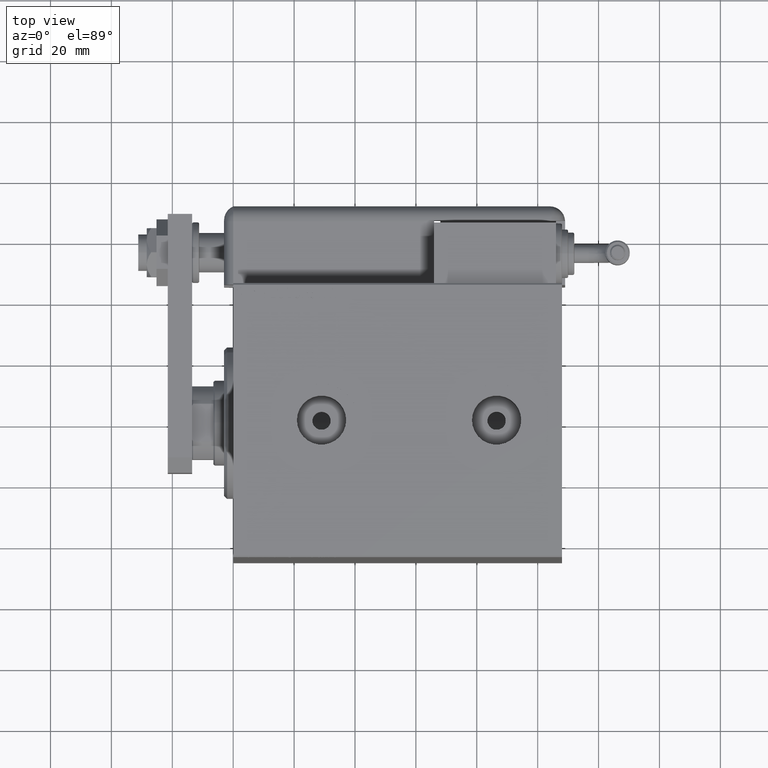
[diagram: clean part render]
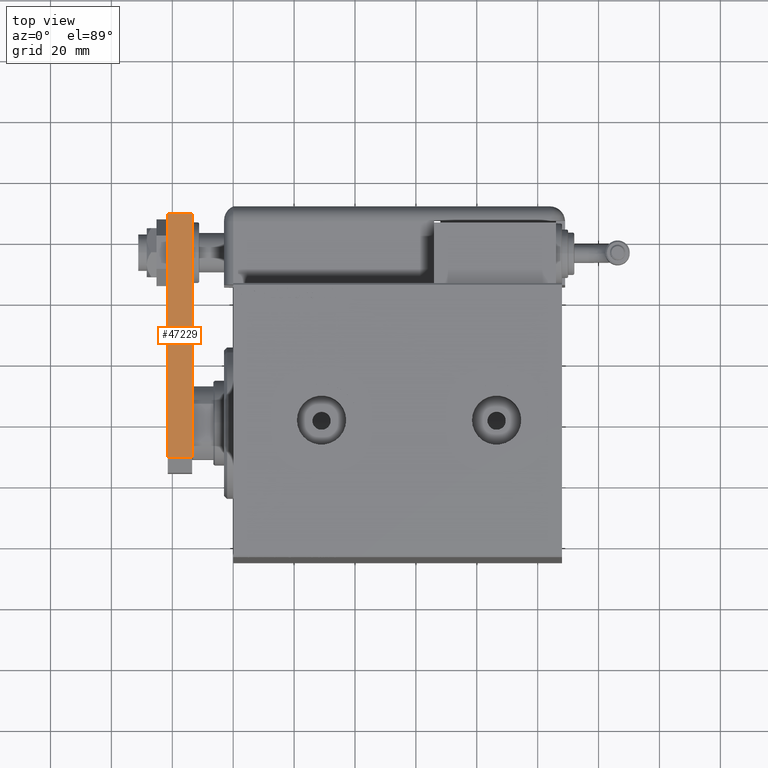
[diagram: same view with one face highlighted and labeled with its STEP entity id]
A machine part, top view. The second image highlights one B-rep face of the part: STEP entity #47229.
In plain terms, the highlighted planar face has unit normal (-0, -0, -1).
Its self-contained STEP definition (entity closure, byte-faithful):
#176 = ORIENTED_EDGE ( 'NONE', *, *, #16781, .T. ) ;
#862 = VERTEX_POINT ( 'NONE', #25179 ) ;
#1203 = DIRECTION ( 'NONE',  ( 1.000000000000000000, -1.020425574104004122E-16, 0.000000000000000000 ) ) ;
#5281 = CARTESIAN_POINT ( 'NONE',  ( -15.00000000000000000, 85.00000000000000000, 0.000000000000000000 ) ) ;
#6160 = DIRECTION ( 'NONE',  ( 1.020425574104004122E-16, 1.000000000000000000, 0.000000000000000000 ) ) ;
#6316 = DIRECTION ( 'NONE',  ( -1.020425574104004122E-16, -1.000000000000000000, 0.000000000000000000 ) ) ;
#7531 = LINE ( 'NONE', #30465, #49514 ) ;
#11548 = EDGE_LOOP ( 'NONE', ( #176, #33571, #48632, #60302 ) ) ;
#13218 = LINE ( 'NONE', #37964, #40402 ) ;
#13727 = EDGE_CURVE ( 'NONE', #45964, #59281, #7531, .T. ) ;
#15184 = CARTESIAN_POINT ( 'NONE',  ( -15.00000000000000000, 85.00000000000000000, 8.000000000000000000 ) ) ;
#16168 = AXIS2_PLACEMENT_3D ( 'NONE', #15184, #1203, #6160 ) ;
#16781 = EDGE_CURVE ( 'NONE', #59281, #29154, #29864, .T. ) ;
#22761 = EDGE_CURVE ( 'NONE', #45964, #862, #26834, .T. ) ;
#25179 = CARTESIAN_POINT ( 'NONE',  ( -15.00000000000000888, 5.000000000000031974, 8.000000000000000000 ) ) ;
#25486 = CARTESIAN_POINT ( 'NONE',  ( -15.00000000000000000, 85.00000000000000000, 8.000000000000000000 ) ) ;
#25525 = DIRECTION ( 'NONE',  ( -0.000000000000000000, -0.000000000000000000, -1.000000000000000000 ) ) ;
#26834 = LINE ( 'NONE', #32685, #58743 ) ;
#28032 = DIRECTION ( 'NONE',  ( -1.020425574104004122E-16, -1.000000000000000000, 0.000000000000000000 ) ) ;
#28749 = VECTOR ( 'NONE', #6316, 1000.000000000000000 ) ;
#29154 = VERTEX_POINT ( 'NONE', #57821 ) ;
#29718 = PLANE ( 'NONE',  #16168 ) ;
#29864 = LINE ( 'NONE', #52561, #28749 ) ;
#30465 = CARTESIAN_POINT ( 'NONE',  ( -15.00000000000000000, 85.00000000000000000, 8.000000000000000000 ) ) ;
#32398 = DIRECTION ( 'NONE',  ( 0.000000000000000000, 0.000000000000000000, 1.000000000000000000 ) ) ;
#32685 = CARTESIAN_POINT ( 'NONE',  ( -15.00000000000000000, 85.00000000000000000, 8.000000000000000000 ) ) ;
#33571 = ORIENTED_EDGE ( 'NONE', *, *, #60923, .T. ) ;
#37964 = CARTESIAN_POINT ( 'NONE',  ( -15.00000000000000888, 5.000000000000031974, 8.000000000000000000 ) ) ;
#40402 = VECTOR ( 'NONE', #32398, 1000.000000000000000 ) ;
#45964 = VERTEX_POINT ( 'NONE', #25486 ) ;
#47229 = ADVANCED_FACE ( 'NONE', ( #57694 ), #29718, .F. ) ;
#48632 = ORIENTED_EDGE ( 'NONE', *, *, #22761, .F. ) ;
#49514 = VECTOR ( 'NONE', #25525, 1000.000000000000000 ) ;
#52561 = CARTESIAN_POINT ( 'NONE',  ( -15.00000000000000000, 85.00000000000000000, 0.000000000000000000 ) ) ;
#57694 = FACE_OUTER_BOUND ( 'NONE', #11548, .T. ) ;
#57821 = CARTESIAN_POINT ( 'NONE',  ( -15.00000000000000888, 5.000000000000031974, 0.000000000000000000 ) ) ;
#58743 = VECTOR ( 'NONE', #28032, 1000.000000000000000 ) ;
#59281 = VERTEX_POINT ( 'NONE', #5281 ) ;
#60302 = ORIENTED_EDGE ( 'NONE', *, *, #13727, .T. ) ;
#60923 = EDGE_CURVE ( 'NONE', #29154, #862, #13218, .T. ) ;